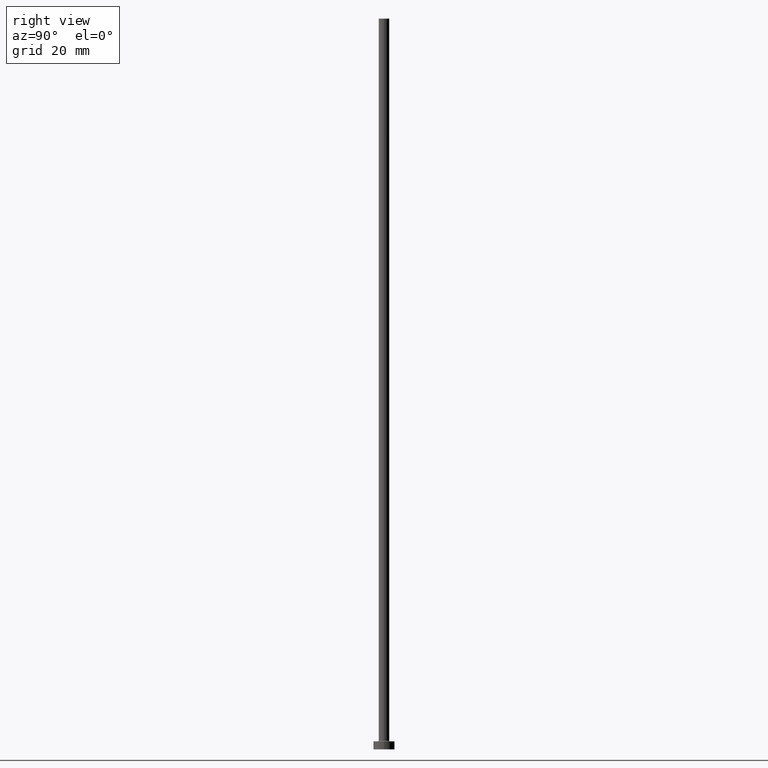
[diagram: clean part render]
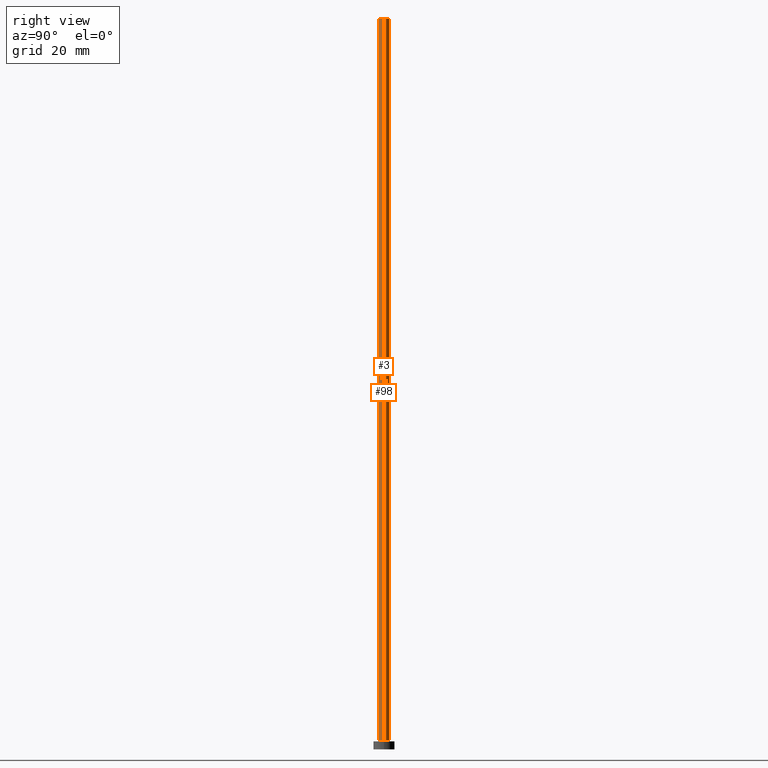
[diagram: same view with one multi-face feature highlighted, each face labeled with its STEP entity id]
A machine part, right view. The highlighted faces form ONE feature: a constant-radius fillet chain: 2 tangent blend faces with common blend radius 2 mm. The faces share edges in the B-rep.
Their STEP definitions:
[1] entity #3 (Cylinder):
#3 = ADVANCED_FACE ( 'NONE', ( #186 ), #155, .T. ) ;
#11 = CARTESIAN_POINT ( 'NONE',  ( 0.000000000000000000, 0.000000000000000000, 275.0000000000000000 ) ) ;
#14 = DIRECTION ( 'NONE',  ( 0.000000000000000000, 0.000000000000000000, 1.000000000000000000 ) ) ;
#27 = EDGE_CURVE ( 'NONE', #172, #352, #408, .T. ) ;
#38 = AXIS2_PLACEMENT_3D ( 'NONE', #340, #14, #135 ) ;
#42 = DIRECTION ( 'NONE',  ( -0.000000000000000000, -0.000000000000000000, -1.000000000000000000 ) ) ;
#47 = CARTESIAN_POINT ( 'NONE',  ( 2.000000000000000000, 2.449293598294706414E-16, 275.0000000000000000 ) ) ;
#52 = AXIS2_PLACEMENT_3D ( 'NONE', #393, #250, #141 ) ;
#78 = EDGE_LOOP ( 'NONE', ( #390, #365, #213, #329 ) ) ;
#135 = DIRECTION ( 'NONE',  ( 1.000000000000000000, 0.000000000000000000, 0.000000000000000000 ) ) ;
#141 = DIRECTION ( 'NONE',  ( 1.000000000000000000, 0.000000000000000000, 0.000000000000000000 ) ) ;
#155 = CYLINDRICAL_SURFACE ( 'NONE', #192, 2.000000000000000000 ) ;
#156 = CARTESIAN_POINT ( 'NONE',  ( 2.000000000000000000, 2.449293598294706414E-16, 275.0000000000000000 ) ) ;
#160 = EDGE_CURVE ( 'NONE', #236, #326, #346, .T. ) ;
#162 = CARTESIAN_POINT ( 'NONE',  ( -2.000000000000000000, 0.000000000000000000, 275.0000000000000000 ) ) ;
#171 = CIRCLE ( 'NONE', #52, 2.000000000000000000 ) ;
#172 = VERTEX_POINT ( 'NONE', #156 ) ;
#186 = FACE_OUTER_BOUND ( 'NONE', #78, .T. ) ;
#189 = CARTESIAN_POINT ( 'NONE',  ( -2.000000000000000000, 0.000000000000000000, 275.0000000000000000 ) ) ;
#192 = AXIS2_PLACEMENT_3D ( 'NONE', #11, #378, #261 ) ;
#213 = ORIENTED_EDGE ( 'NONE', *, *, #160, .T. ) ;
#226 = DIRECTION ( 'NONE',  ( -0.000000000000000000, -0.000000000000000000, -1.000000000000000000 ) ) ;
#231 = VECTOR ( 'NONE', #226, 1000.000000000000000 ) ;
#235 = CARTESIAN_POINT ( 'NONE',  ( -2.000000000000000000, 0.000000000000000000, 3.300000000000025135 ) ) ;
#236 = VERTEX_POINT ( 'NONE', #189 ) ;
#248 = EDGE_CURVE ( 'NONE', #236, #172, #301, .T. ) ;
#250 = DIRECTION ( 'NONE',  ( 0.000000000000000000, 0.000000000000000000, 1.000000000000000000 ) ) ;
#261 = DIRECTION ( 'NONE',  ( -1.000000000000000000, 0.000000000000000000, 0.000000000000000000 ) ) ;
#301 = CIRCLE ( 'NONE', #38, 2.000000000000000000 ) ;
#326 = VERTEX_POINT ( 'NONE', #235 ) ;
#329 = ORIENTED_EDGE ( 'NONE', *, *, #380, .T. ) ;
#340 = CARTESIAN_POINT ( 'NONE',  ( 0.000000000000000000, 0.000000000000000000, 275.0000000000000000 ) ) ;
#346 = LINE ( 'NONE', #162, #231 ) ;
#352 = VERTEX_POINT ( 'NONE', #353 ) ;
#353 = CARTESIAN_POINT ( 'NONE',  ( 2.000000000000000000, 2.449293598294706414E-16, 3.300000000000025135 ) ) ;
#365 = ORIENTED_EDGE ( 'NONE', *, *, #248, .F. ) ;
#378 = DIRECTION ( 'NONE',  ( -0.000000000000000000, -0.000000000000000000, -1.000000000000000000 ) ) ;
#380 = EDGE_CURVE ( 'NONE', #326, #352, #171, .T. ) ;
#390 = ORIENTED_EDGE ( 'NONE', *, *, #27, .F. ) ;
#393 = CARTESIAN_POINT ( 'NONE',  ( 0.000000000000000000, 0.000000000000000000, 3.300000000000025135 ) ) ;
#408 = LINE ( 'NONE', #47, #454 ) ;
#454 = VECTOR ( 'NONE', #42, 1000.000000000000000 ) ;
[2] entity #98 (Cylinder):
#5 = AXIS2_PLACEMENT_3D ( 'NONE', #7, #150, #461 ) ;
#7 = CARTESIAN_POINT ( 'NONE',  ( 0.000000000000000000, 0.000000000000000000, 275.0000000000000000 ) ) ;
#27 = EDGE_CURVE ( 'NONE', #172, #352, #408, .T. ) ;
#42 = DIRECTION ( 'NONE',  ( -0.000000000000000000, -0.000000000000000000, -1.000000000000000000 ) ) ;
#47 = CARTESIAN_POINT ( 'NONE',  ( 2.000000000000000000, 2.449293598294706414E-16, 275.0000000000000000 ) ) ;
#71 = ORIENTED_EDGE ( 'NONE', *, *, #160, .F. ) ;
#98 = ADVANCED_FACE ( 'NONE', ( #138 ), #148, .T. ) ;
#138 = FACE_OUTER_BOUND ( 'NONE', #313, .T. ) ;
#146 = AXIS2_PLACEMENT_3D ( 'NONE', #421, #230, #195 ) ;
#148 = CYLINDRICAL_SURFACE ( 'NONE', #234, 2.000000000000000000 ) ;
#150 = DIRECTION ( 'NONE',  ( 0.000000000000000000, 0.000000000000000000, 1.000000000000000000 ) ) ;
#156 = CARTESIAN_POINT ( 'NONE',  ( 2.000000000000000000, 2.449293598294706414E-16, 275.0000000000000000 ) ) ;
#160 = EDGE_CURVE ( 'NONE', #236, #326, #346, .T. ) ;
#162 = CARTESIAN_POINT ( 'NONE',  ( -2.000000000000000000, 0.000000000000000000, 275.0000000000000000 ) ) ;
#172 = VERTEX_POINT ( 'NONE', #156 ) ;
#174 = DIRECTION ( 'NONE',  ( -1.000000000000000000, 0.000000000000000000, 0.000000000000000000 ) ) ;
#182 = CARTESIAN_POINT ( 'NONE',  ( 0.000000000000000000, 0.000000000000000000, 275.0000000000000000 ) ) ;
#184 = ORIENTED_EDGE ( 'NONE', *, *, #203, .T. ) ;
#189 = CARTESIAN_POINT ( 'NONE',  ( -2.000000000000000000, 0.000000000000000000, 275.0000000000000000 ) ) ;
#195 = DIRECTION ( 'NONE',  ( 1.000000000000000000, 0.000000000000000000, 0.000000000000000000 ) ) ;
#198 = ORIENTED_EDGE ( 'NONE', *, *, #27, .T. ) ;
#200 = CIRCLE ( 'NONE', #5, 2.000000000000000000 ) ;
#203 = EDGE_CURVE ( 'NONE', #352, #326, #287, .T. ) ;
#226 = DIRECTION ( 'NONE',  ( -0.000000000000000000, -0.000000000000000000, -1.000000000000000000 ) ) ;
#230 = DIRECTION ( 'NONE',  ( 0.000000000000000000, 0.000000000000000000, 1.000000000000000000 ) ) ;
#231 = VECTOR ( 'NONE', #226, 1000.000000000000000 ) ;
#234 = AXIS2_PLACEMENT_3D ( 'NONE', #182, #320, #174 ) ;
#235 = CARTESIAN_POINT ( 'NONE',  ( -2.000000000000000000, 0.000000000000000000, 3.300000000000025135 ) ) ;
#236 = VERTEX_POINT ( 'NONE', #189 ) ;
#287 = CIRCLE ( 'NONE', #146, 2.000000000000000000 ) ;
#313 = EDGE_LOOP ( 'NONE', ( #327, #198, #184, #71 ) ) ;
#320 = DIRECTION ( 'NONE',  ( -0.000000000000000000, -0.000000000000000000, -1.000000000000000000 ) ) ;
#326 = VERTEX_POINT ( 'NONE', #235 ) ;
#327 = ORIENTED_EDGE ( 'NONE', *, *, #431, .F. ) ;
#346 = LINE ( 'NONE', #162, #231 ) ;
#352 = VERTEX_POINT ( 'NONE', #353 ) ;
#353 = CARTESIAN_POINT ( 'NONE',  ( 2.000000000000000000, 2.449293598294706414E-16, 3.300000000000025135 ) ) ;
#408 = LINE ( 'NONE', #47, #454 ) ;
#421 = CARTESIAN_POINT ( 'NONE',  ( 0.000000000000000000, 0.000000000000000000, 3.300000000000025135 ) ) ;
#431 = EDGE_CURVE ( 'NONE', #172, #236, #200, .T. ) ;
#454 = VECTOR ( 'NONE', #42, 1000.000000000000000 ) ;
#461 = DIRECTION ( 'NONE',  ( 1.000000000000000000, 0.000000000000000000, 0.000000000000000000 ) ) ;